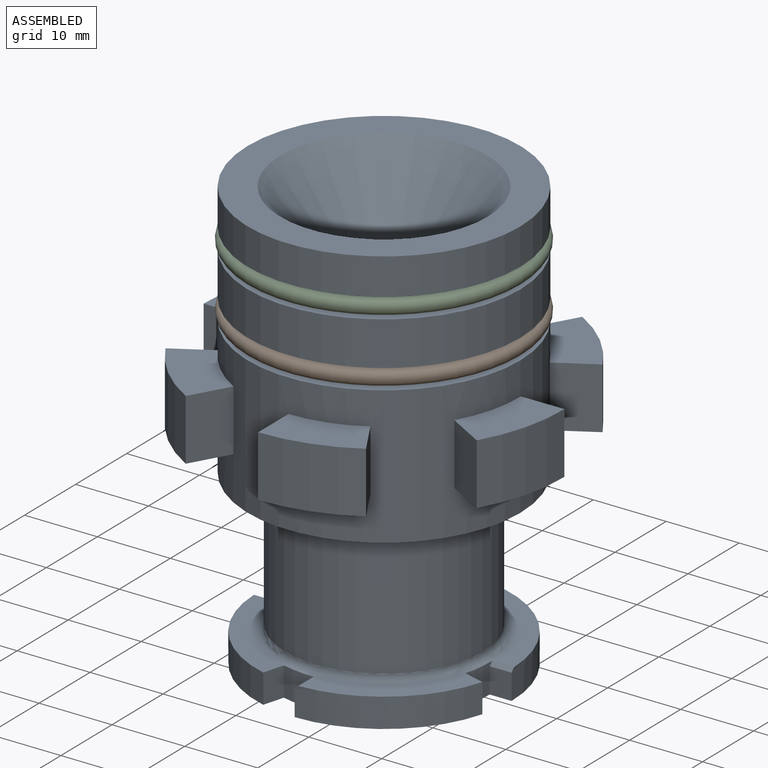
[diagram: assembled view]
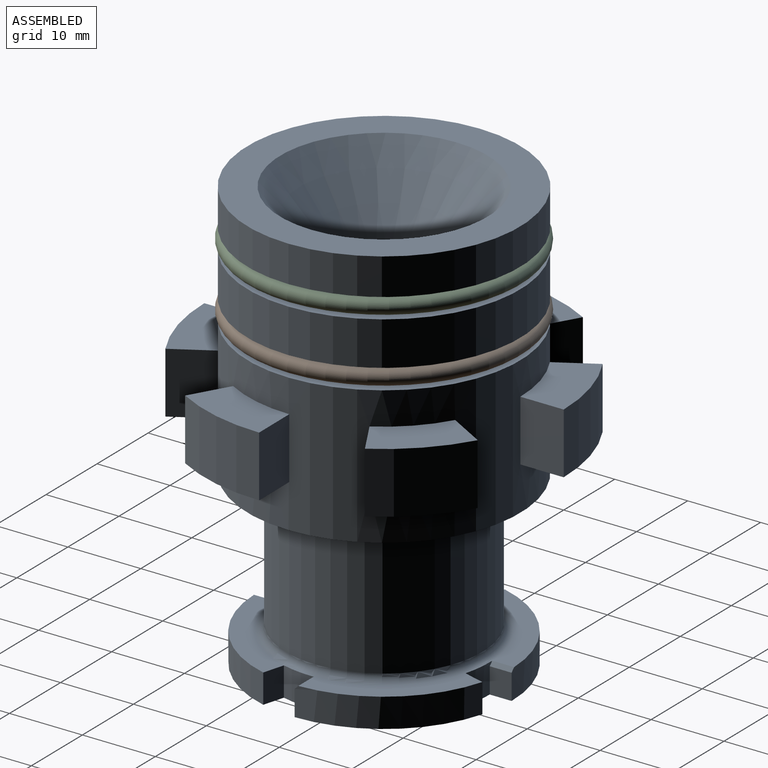
[diagram: assembled view, second angle]
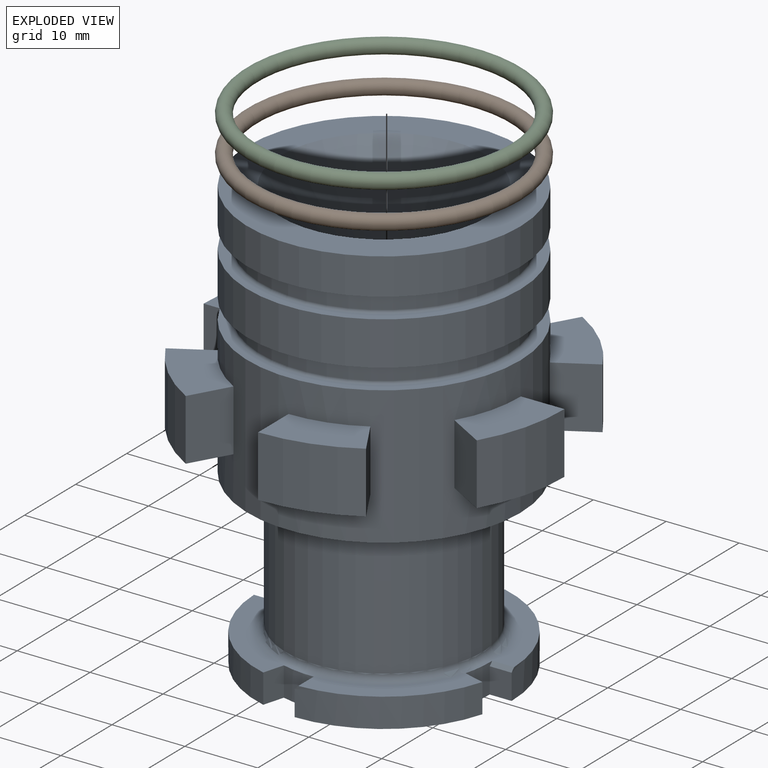
[diagram: exploded view]
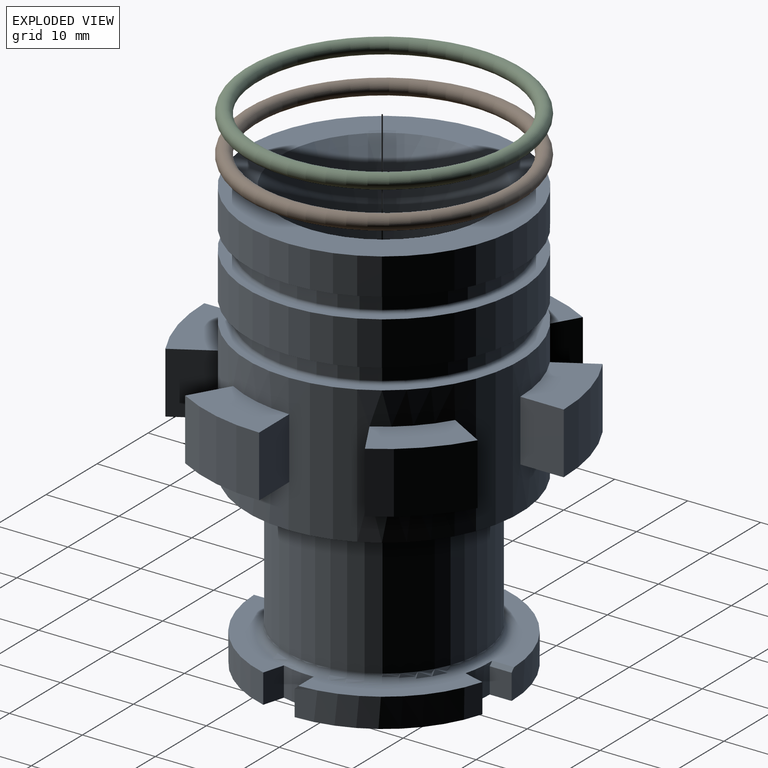
[diagram: exploded view, second angle]
ASSEMBLY  parts=3 mates=2
PART A: 77 faces, bbox 49.3x49.3x59.1 mm
  f0: plane 16.33x13.53mm, normal (0,0,1), area 60.6mm2, adj f41,f43,f61,f73
  f1: cylinder r=17.5mm len=16.83mm, axis (0,0,1), area 90.5mm2, adj f2,f44,f68,f70,f74
  f2: plane 16.33x13.53mm, normal (0,0,1), area 60.6mm2, adj f1,f41,f70,f74
  f3: cylinder r=17.5mm len=16.83mm, axis (0,0,1), area 90.5mm2, adj f4,f44,f65,f67,f75
  f4: plane 16.33x13.53mm, normal (0,0,1), area 60.6mm2, adj f3,f41,f67,f75
  f5: cylinder r=17.5mm len=16.83mm, axis (0,0,1), area 90.5mm2, adj f42,f44,f62,f64,f76
  f6: cylinder r=24.65mm len=9.14mm, axis (0,0,1), area 109.5mm2, adj f7,f8,f50,f60
  f7: plane 12.08x12.06mm, normal (0,0,1), area 68.2mm2, adj f6,f38,f50,f60
  f8: plane 12.08x12.06mm, normal (0,0,-1), area 68.2mm2, adj f6,f38,f50,f60
  f9: cylinder r=24.65mm len=12.46mm, axis (0,0,1), area 109.5mm2, adj f10,f11,f58,f59
  f10: plane 12.46x8.46mm, normal (0,0,1), area 68.2mm2, adj f9,f38,f58,f59
  f11: plane 12.46x8.46mm, normal (0,0,-1), area 68.2mm2, adj f9,f38,f58,f59
  f12: cylinder r=24.65mm len=12.44mm, axis (0,0,1), area 109.5mm2, adj f13,f14,f55,f57
  f13: plane 12.44x8.51mm, normal (0,0,1), area 68.2mm2, adj f12,f38,f55,f57
  f14: plane 12.44x8.51mm, normal (0,0,-1), area 68.2mm2, adj f12,f38,f55,f57
  f15: cylinder r=24.65mm len=9.14mm, axis (0,0,1), area 109.5mm2, adj f16,f17,f54,f56
  f16: plane 12.08x12.06mm, normal (0,0,1), area 68.2mm2, adj f15,f38,f54,f56
  f17: plane 12.08x12.06mm, normal (0,0,-1), area 68.2mm2, adj f15,f38,f54,f56
  f18: cylinder r=24.65mm len=12.46mm, axis (0,0,1), area 109.5mm2, adj f19,f20,f52,f53
  f19: plane 12.46x8.46mm, normal (0,0,1), area 68.2mm2, adj f18,f38,f52,f53
  f20: plane 12.46x8.46mm, normal (0,0,-1), area 68.2mm2, adj f18,f38,f52,f53
  f21: cone r=14.22mm half-angle=40deg, axis (0,0,1), area 791.5mm2, adj f22,f48
  f22: plane 37.4x37.4mm, normal (0,0,1), area 463.6mm2, adj f21,f23
  f23: cylinder r=18.7mm len=37.4mm, axis (0,0,1), area 587.5mm2, adj f22,f24
  f24: plane 37.4x37.4mm, normal (0,0,-1), area 145.2mm2, adj f23,f25
  f25: torus R=17.42mm, axis (0,0,1), area 67.8mm2, adj f24,f26
  f26: cylinder r=17.02mm len=34.04mm, axis (0,0,1), area 213.9mm2, adj f25,f27
  f27: torus R=17.42mm, axis (0,0,1), area 67.8mm2, adj f26,f28
  f28: plane 37.4x37.4mm, normal (0,0,1), area 145.2mm2, adj f27,f29
  f29: cylinder r=18.7mm len=37.4mm, axis (0,0,1), area 705mm2, adj f28,f30
  f30: plane 37.4x37.4mm, normal (0,0,-1), area 145.2mm2, adj f29,f31
  f31: torus R=17.42mm, axis (0,0,1), area 67.8mm2, adj f30,f32
  f32: cylinder r=17.02mm len=34.04mm, axis (0,0,1), area 213.9mm2, adj f31,f33
  f33: torus R=17.42mm, axis (0,0,1), area 67.8mm2, adj f32,f34
  f34: plane 37.4x37.4mm, normal (0,0,1), area 145.2mm2, adj f33,f38
  f35: plane 12.44x8.51mm, normal (0,0,1), area 68.2mm2, adj f36,f38,f49,f51
  f36: cylinder r=24.65mm len=12.44mm, axis (0,0,1), area 109.5mm2, adj f35,f37,f49,f51
  f37: plane 12.44x8.51mm, normal (0,0,-1), area 68.2mm2, adj f36,f38,f49,f51
  f38: cylinder r=18.7mm len=37.4mm, axis (0,0,1), area 1722.1mm2, adj f7,f8,f10,f11,f13,f14,f16,f17
  f39: plane 37.4x37.4mm, normal (0,0,-1), area 526mm2, adj f38,f40
  f40: cylinder r=13.5mm len=27mm, axis (0,0,1), area 1581.1mm2, adj f39,f41
  f41: torus R=14.5mm, axis (0,0,1), area 136.8mm2, adj f0,f2,f4,f40,f42,f63,f66,f69
  f42: plane 16.33x13.53mm, normal (0,0,1), area 60.6mm2, adj f5,f41,f64,f76
  f43: cylinder r=17.5mm len=16.83mm, axis (0,0,1), area 90.5mm2, adj f0,f44,f61,f71,f73
  f44: plane 35x35mm, normal (0,0,-1), area 625.4mm2, adj f1,f3,f5,f43,f45,f61,f62,f63
  f45: cone r=4.15mm half-angle=10deg, axis (0,0,-1), area 1320.9mm2, adj f44,f46
  f46: torus R=14mm, axis (0,0,1), area 44.4mm2, adj f45,f47
  f47: cylinder r=4mm len=11.26mm, axis (0,0,1), area 282.9mm2, adj f46,f48
  f48: torus R=14mm, axis (0,0,1), area 210.2mm2, adj f21,f47
  f49: plane 8.4x5.95mm, normal (1,0,0), area 50mm2, adj f35,f36,f37,f38
  f50: plane 8.4x5.17mm, normal (-0.87,0.5,0), area 50mm2, adj f6,f7,f8,f38
  f51: plane 8.4x5.14mm, normal (-0.86,-0.5,0), area 50mm2, adj f35,f36,f37,f38
  f52: plane 8.4x5.15mm, normal (0.5,0.87,0), area 50mm2, adj f18,f19,f20,f38
  f53: plane 8.4x5.95mm, normal (0.01,-1,0), area 50mm2, adj f18,f19,f20,f38
  f54: plane 8.4x5.15mm, normal (-0.5,0.87,0), area 50mm2, adj f15,f16,f17,f38
  f55: plane 8.4x5.95mm, normal (-1,0,0), area 50mm2, adj f12,f13,f14,f38
  f56: plane 8.4x5.17mm, normal (0.87,-0.5,0), area 50mm2, adj f15,f16,f17,f38
  f57: plane 8.4x5.14mm, normal (0.86,0.5,0), area 50mm2, adj f12,f13,f14,f38
  f58: plane 8.4x5.15mm, normal (-0.5,-0.87,0), area 50mm2, adj f9,f10,f11,f38
  f59: plane 8.4x5.95mm, normal (-0.01,1,0), area 50mm2, adj f9,f10,f11,f38
  f60: plane 8.4x5.15mm, normal (0.5,-0.87,0), area 50mm2, adj f6,f7,f8,f38
  f61: plane 4x2.89mm, normal (0.96,-0.27,0), area 12mm2, adj f0,f43,f44,f63
  f62: plane 3.5x3mm, normal (-1,0,0), area 10.5mm2, adj f5,f44,f63,f76
  f63: cylinder r=14.5mm len=4.46mm, axis (0,0,-1), area 16.2mm2, adj f41,f44,f61,f62,f76
  f64: plane 4x2.89mm, normal (0.27,0.96,0), area 12mm2, adj f5,f42,f44,f66
  f65: plane 3.5x3mm, normal (0,-1,0), area 10.5mm2, adj f3,f44,f66,f75
  f66: cylinder r=14.5mm len=4.46mm, axis (0,0,-1), area 16.2mm2, adj f41,f44,f64,f65,f75
  f67: plane 4x2.89mm, normal (-0.96,0.27,0), area 12mm2, adj f3,f4,f44,f69
  f68: plane 3.5x3mm, normal (1,0,0), area 10.5mm2, adj f1,f44,f69,f74
  f69: cylinder r=14.5mm len=4.46mm, axis (0,0,-1), area 16.2mm2, adj f41,f44,f67,f68,f74
  f70: plane 4x2.89mm, normal (-0.27,-0.96,0), area 12mm2, adj f1,f2,f44,f72
  f71: plane 3.5x3mm, normal (0,1,0), area 10.5mm2, adj f43,f44,f72,f73
  f72: cylinder r=14.5mm len=4.46mm, axis (0,0,-1), area 16.2mm2, adj f41,f44,f70,f71,f73
  f73: plane 3.01x0.5mm, normal (0,0.71,0.71), area 2.1mm2, adj f0,f43,f71,f72
  f74: plane 3.01x0.5mm, normal (0.71,0,0.71), area 2.1mm2, adj f1,f2,f68,f69
  f75: plane 3.01x0.5mm, normal (0,-0.71,0.71), area 2.1mm2, adj f3,f4,f65,f66
  f76: plane 3.01x0.5mm, normal (-0.71,0,0.71), area 2.1mm2, adj f5,f42,f62,f63
PART B: 1 faces, bbox 41.1x41.1x2 mm
  f0: torus R=18mm, axis (0,0,1), area 710.6mm2
PART C: same geometry as B
PLACE A t=(27.35,-11.49,-27.22)mm fixed
PLACE B t=(27.35,-11.49,-6.96)mm
PLACE C t=(27.35,-11.49,1.83)mm
MATE cylindrical A.f1 <-> B.f0  axis (0,0,-1) through (27.35,-11.49,-5.52)mm
MATE cylindrical A.f1 <-> C.f0  axis (0,0,-1) through (27.35,-11.49,3.28)mm
